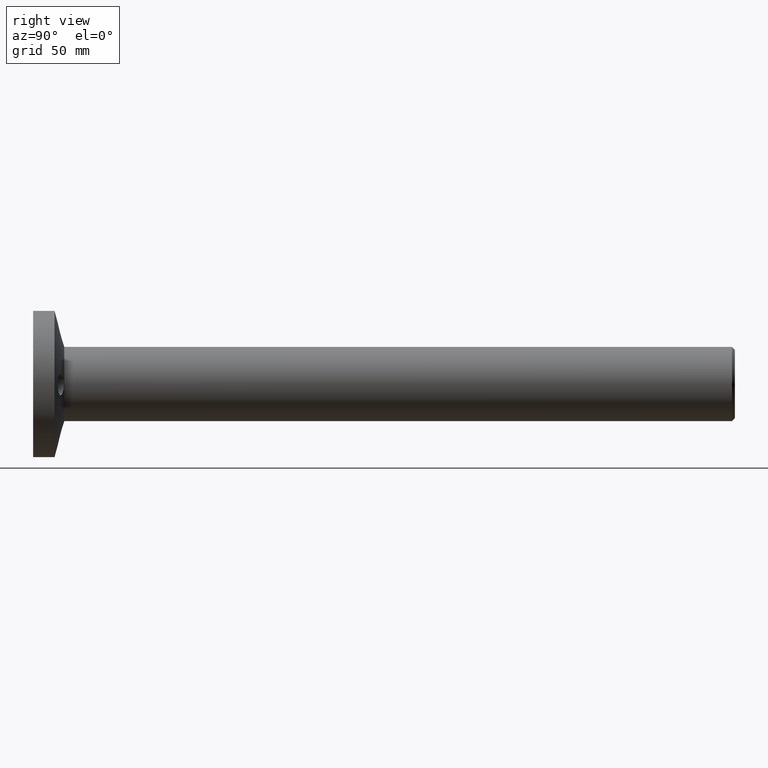
[diagram: clean part render]
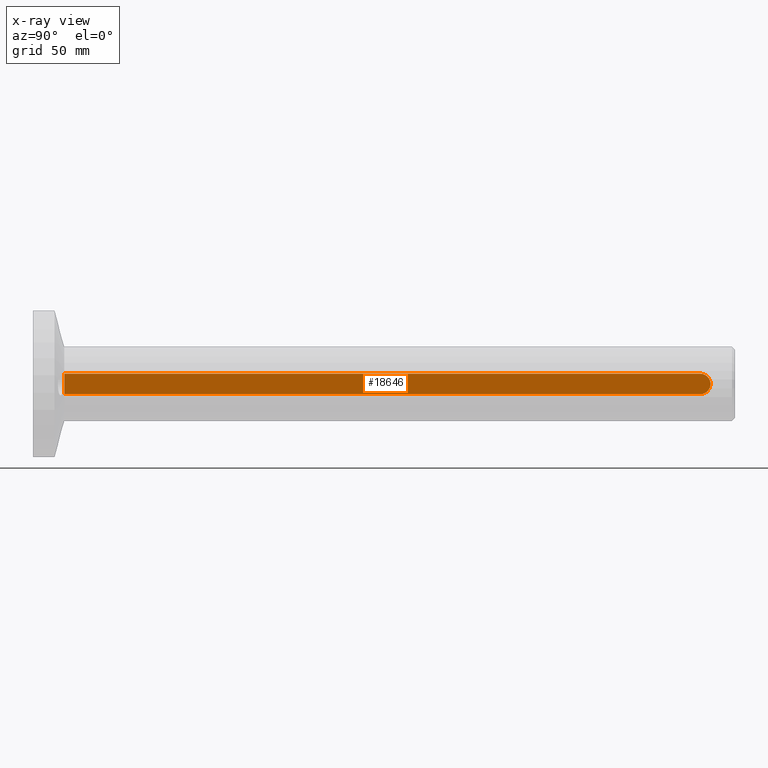
[diagram: x-ray — body ghosted, one internal face saturated and labeled with its STEP entity id]
A machine part, right view, then the same camera in x-ray: the body is ghosted and one INTERNAL B-rep face — a face not visible from any outside direction — is saturated and labeled: STEP entity #18646.
In plain terms, the highlighted planar face has unit normal (-1, 0, 0).
Its self-contained STEP definition (entity closure, byte-faithful):
#358 = EDGE_CURVE ( 'NONE', #12017, #3543, #6915, .T. ) ;
#508 = CARTESIAN_POINT ( 'NONE',  ( -15.54999999999999400, 12.92990217911026100, -5.249999999999996400 ) ) ;
#795 = ORIENTED_EDGE ( 'NONE', *, *, #8296, .F. ) ;
#965 = CARTESIAN_POINT ( 'NONE',  ( -15.54999999999999400, 367.9978739896995400, 5.249999999999996400 ) ) ;
#1145 = CARTESIAN_POINT ( 'NONE',  ( -15.54999999999999400, 338.6799021791102900, -5.249999999999996400 ) ) ;
#1559 = LINE ( 'NONE', #8304, #13964 ) ;
#1604 = DIRECTION ( 'NONE',  ( 0.0000000000000000000, 0.0000000000000000000, -1.000000000000000000 ) ) ;
#1673 = VECTOR ( 'NONE', #14603, 1000.000000000000000 ) ;
#2182 = ORIENTED_EDGE ( 'NONE', *, *, #13062, .F. ) ;
#2640 = AXIS2_PLACEMENT_3D ( 'NONE', #6885, #9970, #14558 ) ;
#2659 = DIRECTION ( 'NONE',  ( 0.0000000000000000000, 0.0000000000000000000, 1.000000000000000000 ) ) ;
#2914 = VERTEX_POINT ( 'NONE', #16665 ) ;
#2962 = VECTOR ( 'NONE', #11801, 1000.000000000000000 ) ;
#2986 = ORIENTED_EDGE ( 'NONE', *, *, #18784, .F. ) ;
#3387 = ORIENTED_EDGE ( 'NONE', *, *, #13462, .T. ) ;
#3543 = VERTEX_POINT ( 'NONE', #11659 ) ;
#3840 = CARTESIAN_POINT ( 'NONE',  ( -15.54999999999999400, 338.6799021791102900, 5.249999999999996400 ) ) ;
#3987 = DIRECTION ( 'NONE',  ( 0.0000000000000000000, 0.0000000000000000000, -1.000000000000000000 ) ) ;
#4035 = LINE ( 'NONE', #16130, #4979 ) ;
#4773 = LINE ( 'NONE', #965, #1673 ) ;
#4979 = VECTOR ( 'NONE', #2659, 1000.000000000000000 ) ;
#5940 = VERTEX_POINT ( 'NONE', #1145 ) ;
#6885 = CARTESIAN_POINT ( 'NONE',  ( -15.54999999999999400, 339.1799021791103400, -1.540743955509788700E-030 ) ) ;
#6915 = CIRCLE ( 'NONE', #15130, 5.249999999999974200 ) ;
#7049 = EDGE_LOOP ( 'NONE', ( #795, #2182, #8862, #15665, #16110, #3387, #13977, #2986 ) ) ;
#7277 = CIRCLE ( 'NONE', #11851, 5.249999999999974200 ) ;
#7449 = VERTEX_POINT ( 'NONE', #3840 ) ;
#7516 = EDGE_CURVE ( 'NONE', #3543, #17574, #17507, .T. ) ;
#8296 = EDGE_CURVE ( 'NONE', #2914, #7449, #8670, .T. ) ;
#8304 = CARTESIAN_POINT ( 'NONE',  ( -15.54999999999999400, 12.92990217911026100, 5.249999999999996400 ) ) ;
#8400 = CARTESIAN_POINT ( 'NONE',  ( -15.54999999999999400, 12.92990217911026100, 5.249999999999996400 ) ) ;
#8670 = LINE ( 'NONE', #9003, #2962 ) ;
#8862 = ORIENTED_EDGE ( 'NONE', *, *, #7516, .F. ) ;
#9003 = CARTESIAN_POINT ( 'NONE',  ( -15.54999999999999400, 338.6799021791102900, 5.249999999999996400 ) ) ;
#9514 = CARTESIAN_POINT ( 'NONE',  ( -15.54999999999999400, 367.9978739896995400, -5.249999999999996400 ) ) ;
#9970 = DIRECTION ( 'NONE',  ( 1.000000000000000000, 0.0000000000000000000, 0.0000000000000000000 ) ) ;
#10152 = VECTOR ( 'NONE', #17031, 1000.000000000000000 ) ;
#11659 = CARTESIAN_POINT ( 'NONE',  ( -15.54999999999999400, 339.1799021791103400, -5.249999999999976900 ) ) ;
#11795 = EDGE_CURVE ( 'NONE', #5940, #12017, #4035, .T. ) ;
#11801 = DIRECTION ( 'NONE',  ( 0.0000000000000000000, 0.0000000000000000000, 1.000000000000000000 ) ) ;
#11851 = AXIS2_PLACEMENT_3D ( 'NONE', #17710, #14569, #3987 ) ;
#12017 = VERTEX_POINT ( 'NONE', #18187 ) ;
#12924 = AXIS2_PLACEMENT_3D ( 'NONE', #17488, #17553, #15901 ) ;
#13062 = EDGE_CURVE ( 'NONE', #17574, #2914, #7277, .T. ) ;
#13462 = EDGE_CURVE ( 'NONE', #5940, #15704, #18006, .T. ) ;
#13964 = VECTOR ( 'NONE', #14241, 1000.000000000000000 ) ;
#13977 = ORIENTED_EDGE ( 'NONE', *, *, #15257, .F. ) ;
#14241 = DIRECTION ( 'NONE',  ( -4.930380657631327100E-032, 0.0000000000000000000, -1.000000000000000000 ) ) ;
#14558 = DIRECTION ( 'NONE',  ( 0.0000000000000000000, 0.0000000000000000000, -1.000000000000000000 ) ) ;
#14569 = DIRECTION ( 'NONE',  ( 1.000000000000000000, 0.0000000000000000000, 0.0000000000000000000 ) ) ;
#14603 = DIRECTION ( 'NONE',  ( 0.0000000000000000000, -1.000000000000000000, 0.0000000000000000000 ) ) ;
#14865 = CARTESIAN_POINT ( 'NONE',  ( -15.54999999999999400, 339.1799021791103400, 5.249999999999976900 ) ) ;
#15130 = AXIS2_PLACEMENT_3D ( 'NONE', #16726, #16801, #1604 ) ;
#15257 = EDGE_CURVE ( 'NONE', #19374, #15704, #1559, .T. ) ;
#15522 = FACE_OUTER_BOUND ( 'NONE', #7049, .T. ) ;
#15665 = ORIENTED_EDGE ( 'NONE', *, *, #358, .F. ) ;
#15704 = VERTEX_POINT ( 'NONE', #508 ) ;
#15901 = DIRECTION ( 'NONE',  ( 0.0000000000000000000, 0.0000000000000000000, 1.000000000000000000 ) ) ;
#16022 = PLANE ( 'NONE',  #12924 ) ;
#16110 = ORIENTED_EDGE ( 'NONE', *, *, #11795, .F. ) ;
#16130 = CARTESIAN_POINT ( 'NONE',  ( -15.54999999999999400, 338.6799021791102900, 5.249999999999996400 ) ) ;
#16665 = CARTESIAN_POINT ( 'NONE',  ( -15.54999999999999400, 338.6799021791102900, 5.226136240091686400 ) ) ;
#16726 = CARTESIAN_POINT ( 'NONE',  ( -15.54999999999999400, 339.1799021791103400, -1.540743955509788700E-030 ) ) ;
#16801 = DIRECTION ( 'NONE',  ( 1.000000000000000000, 0.0000000000000000000, 0.0000000000000000000 ) ) ;
#17031 = DIRECTION ( 'NONE',  ( 0.0000000000000000000, -1.000000000000000000, 0.0000000000000000000 ) ) ;
#17488 = CARTESIAN_POINT ( 'NONE',  ( -15.54999999999999400, 367.9978739896995400, 5.249999999999996400 ) ) ;
#17507 = CIRCLE ( 'NONE', #2640, 5.249999999999974200 ) ;
#17553 = DIRECTION ( 'NONE',  ( -1.000000000000000000, 0.0000000000000000000, 0.0000000000000000000 ) ) ;
#17574 = VERTEX_POINT ( 'NONE', #14865 ) ;
#17710 = CARTESIAN_POINT ( 'NONE',  ( -15.54999999999999400, 339.1799021791103400, -1.540743955509788700E-030 ) ) ;
#18006 = LINE ( 'NONE', #9514, #10152 ) ;
#18187 = CARTESIAN_POINT ( 'NONE',  ( -15.54999999999999400, 338.6799021791102900, -5.226136240091686400 ) ) ;
#18646 = ADVANCED_FACE ( 'NONE', ( #15522 ), #16022, .T. ) ;
#18784 = EDGE_CURVE ( 'NONE', #7449, #19374, #4773, .T. ) ;
#19374 = VERTEX_POINT ( 'NONE', #8400 ) ;